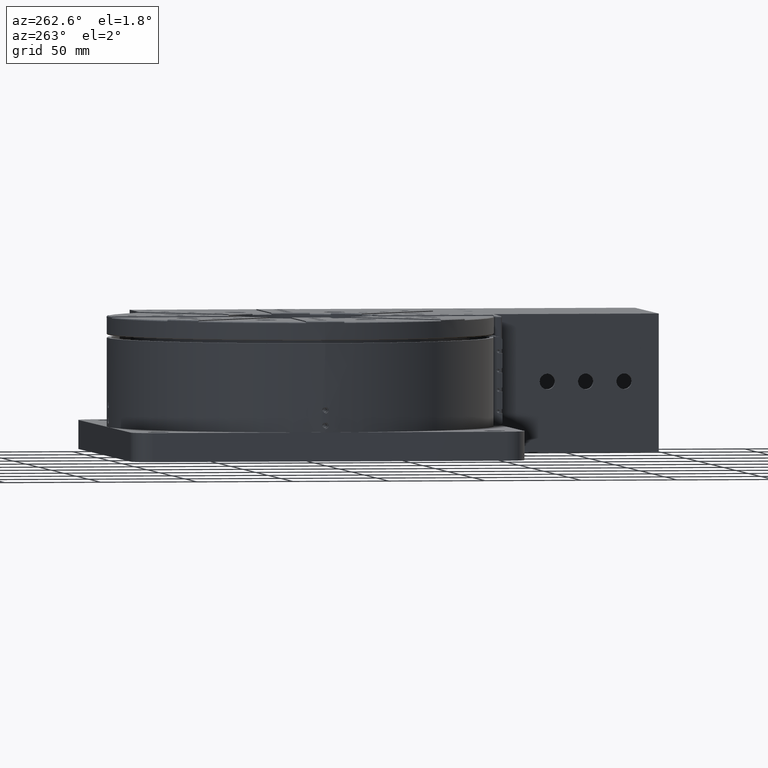
[diagram: clean part render]
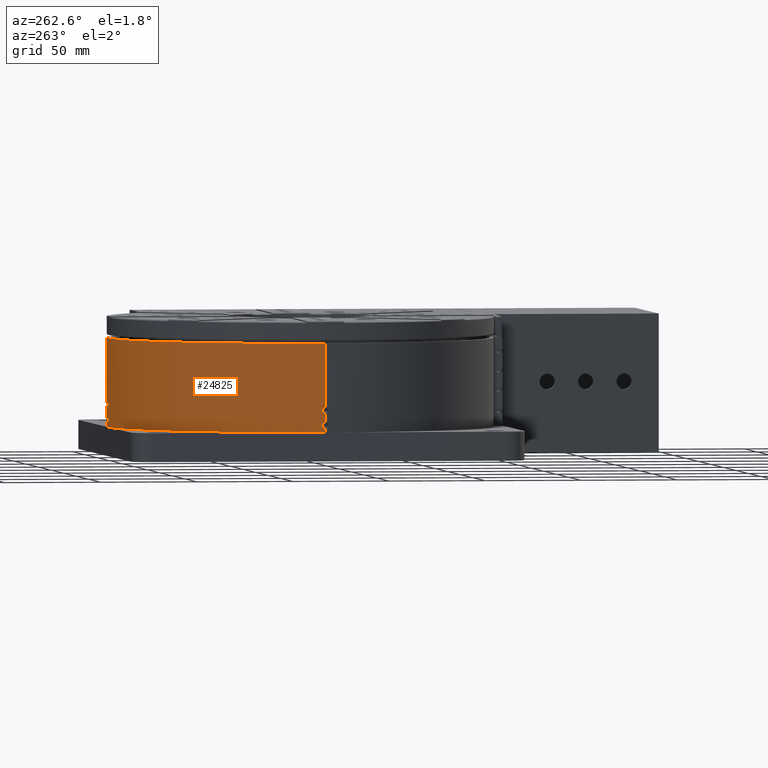
[diagram: same view with one face highlighted and labeled with its STEP entity id]
A machine part, auxiliary view. The second image highlights one B-rep face of the part: STEP entity #24825.
In plain terms, the highlighted cylindrical surface (partial cylindrical patch) has radius 100 mm, axis along (0, 0, -1).
Its self-contained STEP definition (entity closure, byte-faithful):
#1189 = CARTESIAN_POINT ( 'NONE',  ( -54.65769929122529902, 114.5278801913627831, 248.4556803478930078 ) ) ;
#1615 = CARTESIAN_POINT ( 'NONE',  ( -155.5643203279873603, 15.84961524506876884, 237.6834766462955031 ) ) ;
#2482 = B_SPLINE_CURVE_WITH_KNOTS ( 'NONE', 3,
 ( #67013, #51541, #169720, #7962, #83436, #126098, #37049, #6989, #185207, #187109, #97974, #154218, #138718, #22507, #50571, #81498, #66046, #186162, #111558, #109614, #96072, #38930, #125127, #140611, #52509, #65116, #124176, #37991, #67972, #127067, #168750, #156113, #54409, #36084, #158056, #53453, #9894, #23470, #82474, #128016 ),
 .UNSPECIFIED., .F., .F.,
 ( 4, 1, 1, 1, 2, 2, 1, 1, 1, 1, 1, 1, 1, 2, 2, 2, 2, 2, 1, 1, 2, 2, 2, 2, 2, 4 ),
 ( 0.000000000000000000, 0.1249999999961303454, 0.1874999999941908690, 0.2187499999932210615, 0.2343749999927431382, 0.2499999999922652427, 0.3749999999884356949, 0.4374999999865297196, 0.4687499999855854194, 0.4843749999851131305, 0.4921874999848769860, 0.4960937499847506427, 0.4980468749846956866, 0.4990234374846763687, 0.4999999999846570509, 0.5624999999866969747, 0.5937499999877080548, 0.6093749999882133173, 0.6171874999884712221, 0.6210937499885996749, 0.6230468749886644009, 0.6249999999887290159, 0.6874999999906082904, 0.7187499999915478721, 0.7499999999924874539, 1.000000000000000000 ),
 .UNSPECIFIED. ) ;
#2637 = EDGE_CURVE ( 'NONE', #38722, #62733, #173924, .T. ) ;
#2937 = VERTEX_POINT ( 'NONE', #136035 ) ;
#3620 = CARTESIAN_POINT ( 'NONE',  ( -55.23421330176490329, 114.5310772847533940, 237.3796205660365217 ) ) ;
#5496 = CARTESIAN_POINT ( 'NONE',  ( -56.77698695168285070, 114.5244574740784458, 245.8396557086296639 ) ) ;
#6455 = CARTESIAN_POINT ( 'NONE',  ( -57.16859751238263954, 114.5188271301435776, 247.5531305477007322 ) ) ;
#6782 = CARTESIAN_POINT ( 'NONE',  ( -54.12838381066300997, 114.5213024190822040, 239.9352167471500081 ) ) ;
#6989 = CARTESIAN_POINT ( 'NONE',  ( -56.86505467671115355, 114.5232497472620281, 237.9282754262680157 ) ) ;
#7387 = CARTESIAN_POINT ( 'NONE',  ( -56.39973812808321441, 114.5285659856931488, 245.5622391414084973 ) ) ;
#7854 = B_SPLINE_CURVE_WITH_KNOTS ( 'NONE', 3,
 ( #129766, #69704, #188875, #13550 ),
 .UNSPECIFIED., .F., .F.,
 ( 4, 4 ),
 ( 0.000000000000000000, 1.000000000000000000 ),
 .UNSPECIFIED. ) ;
#7962 = CARTESIAN_POINT ( 'NONE',  ( -56.66232664322305368, 114.5258748342820070, 237.7404680869616698 ) ) ;
#8361 = CARTESIAN_POINT ( 'NONE',  ( -57.23389743214099212, 114.5177512602324157, 247.2772414931909566 ) ) ;
#8716 = CARTESIAN_POINT ( 'NONE',  ( -55.56779458258647963, 114.5316349014938453, 240.6500060902898213 ) ) ;
#8853 = B_SPLINE_CURVE_WITH_KNOTS ( 'NONE', 3,
 ( #136999, #165142, #30587, #32480 ),
 .UNSPECIFIED., .F., .F.,
 ( 4, 4 ),
 ( 4.132902548390150352E-06, 0.9999965208820320584 ),
 .UNSPECIFIED. ) ;
#8874 = EDGE_CURVE ( 'NONE', #97605, #120846, #74386, .T. ) ;
#9657 = CARTESIAN_POINT ( 'NONE',  ( -155.5681641378453719, 14.53200402429864369, 248.6500061299653339 ) ) ;
#9894 = CARTESIAN_POINT ( 'NONE',  ( -56.90730623217696404, 114.5226719297569531, 240.0229240385822038 ) ) ;
#10088 = CARTESIAN_POINT ( 'NONE',  ( -55.45684698599180251, 114.5316349021150018, 237.3598735220119806 ) ) ;
#10458 = VERTEX_POINT ( 'NONE', #134733 ) ;
#10605 = CARTESIAN_POINT ( 'NONE',  ( -155.5578316554318690, 15.97141522991129037, 247.9352167471480186 ) ) ;
#11193 = CARTESIAN_POINT ( 'NONE',  ( -155.5681641384674947, 14.53163351315991925, 237.3500001268135122 ) ) ;
#11573 = CARTESIAN_POINT ( 'NONE',  ( -155.5643203279873603, 15.84961524506646846, 245.6834766462979758 ) ) ;
#13059 = DIRECTION ( 'NONE',  ( 1.000000000000000000, 0.000000000000000000, 0.000000000000000000 ) ) ;
#13478 = CARTESIAN_POINT ( 'NONE',  ( -155.5559814654983768, 16.09305430728590736, 247.6741857473749917 ) ) ;
#13550 = CARTESIAN_POINT ( 'NONE',  ( -55.56785869662279964, 114.5316349018150106, 240.6500182094019920 ) ) ;
#13845 = CARTESIAN_POINT ( 'NONE',  ( -53.80279082161928983, 114.5160906387621793, 246.2782241995705306 ) ) ;
#14831 = CARTESIAN_POINT ( 'NONE',  ( -55.23421330176490329, 114.5310772847533940, 245.3796205660364933 ) ) ;
#17980 = CARTESIAN_POINT ( 'NONE',  ( 13.54046305604783917, 86.80886262488719751, 281.5000000000000000 ) ) ;
#18800 = EDGE_LOOP ( 'NONE', ( #111894, #62391, #19498, #38022, #177020, #151964, #81314, #141502, #118738, #134845 ) ) ;
#19104 = CARTESIAN_POINT ( 'NONE',  ( -57.12941417007732525, 114.5194530834625226, 247.6694349193007270 ) ) ;
#19498 = ORIENTED_EDGE ( 'NONE', *, *, #141984, .T. ) ;
#19554 = EDGE_CURVE ( 'NONE', #180047, #156100, #76650, .T. ) ;
#20041 = CARTESIAN_POINT ( 'NONE',  ( -56.82256244359358988, 114.5238432005619842, 245.8843216973933750 ) ) ;
#20393 = CARTESIAN_POINT ( 'NONE',  ( -53.90297064645406522, 114.5177702137962115, 239.2745743383574961 ) ) ;
#21003 = CARTESIAN_POINT ( 'NONE',  ( -57.21569915891316072, 114.5180549505559071, 247.3764914013594591 ) ) ;
#22029 = CARTESIAN_POINT ( 'NONE',  ( -55.79068353724080254, 114.5314494966760037, 248.6302496574835175 ) ) ;
#22106 = VERTEX_POINT ( 'NONE', #25630 ) ;
#22507 = CARTESIAN_POINT ( 'NONE',  ( -57.25148107347646231, 114.5173839427855427, 238.9534712130991920 ) ) ;
#22900 = CARTESIAN_POINT ( 'NONE',  ( -57.25185001370705606, 114.5174537120169020, 246.9965083331596816 ) ) ;
#23470 = CARTESIAN_POINT ( 'NONE',  ( -56.65490750957404487, 114.5259813726347460, 240.3044122653643342 ) ) ;
#23562 = FACE_OUTER_BOUND ( 'NONE', #18800, .T. ) ;
#24143 = EDGE_CURVE ( 'NONE', #2937, #180047, #86153, .T. ) ;
#24196 = CARTESIAN_POINT ( 'NONE',  ( -155.5546123641968563, 16.17809857474733448, 247.3817942002244763 ) ) ;
#24638 = CARTESIAN_POINT ( 'NONE',  ( -55.23421330176490329, 114.5310772847533940, 237.3796205660365217 ) ) ;
#24825 = ADVANCED_FACE ( 'NONE', ( #170760, #54506, #23562 ), #155257, .T. ) ;
#25157 = CARTESIAN_POINT ( 'NONE',  ( -155.5526198751113611, 16.29700821896830476, 246.2782241995719517 ) ) ;
#25198 = CARTESIAN_POINT ( 'NONE',  ( -155.5681641384674947, 14.53163490211490050, 281.5000000000000000 ) ) ;
#25285 = CARTESIAN_POINT ( 'NONE',  ( 13.54046305604783917, 86.80886262488719751, 281.5000000000000000 ) ) ;
#25630 = CARTESIAN_POINT ( 'NONE',  ( -55.90423487919129997, 114.5310701828063884, 237.3806835153100110 ) ) ;
#26506 = VERTEX_POINT ( 'NONE', #53579 ) ;
#27046 = DIRECTION ( 'NONE',  ( 0.000000000000000000, 0.000000000000000000, -1.000000000000000000 ) ) ;
#27403 = ORIENTED_EDGE ( 'NONE', *, *, #94515, .F. ) ;
#27475 = CIRCLE ( 'NONE', #76869, 100.0000000000000000 ) ;
#28813 = CARTESIAN_POINT ( 'NONE',  ( -155.5526198751113611, 16.29700821896960505, 238.2782241995699906 ) ) ;
#29336 = CARTESIAN_POINT ( 'NONE',  ( -54.23875289988878734, 114.5228953717271594, 248.0841489757619911 ) ) ;
#30587 = CARTESIAN_POINT ( 'NONE',  ( -55.79221216942850248, 114.5314466604589967, 245.3704558752244793 ) ) ;
#30648 = CARTESIAN_POINT ( 'NONE',  ( -55.56816552742220239, 114.5316349021150018, 245.3500001268135122 ) ) ;
#32480 = CARTESIAN_POINT ( 'NONE',  ( -55.90423487919120049, 114.5310701828063884, 245.3806835153094710 ) ) ;
#34904 = CARTESIAN_POINT ( 'NONE',  ( -53.97351746708604026, 114.5189229612268207, 239.5809033046435275 ) ) ;
#35595 = CARTESIAN_POINT ( 'NONE',  ( -55.90218999769640362, 114.5310770341855999, 248.6203539682074677 ) ) ;
#36084 = CARTESIAN_POINT ( 'NONE',  ( -57.01141424451510176, 114.5212274022377130, 239.8834809172803944 ) ) ;
#36470 = CARTESIAN_POINT ( 'NONE',  ( -55.79221216942860195, 114.5314466604589967, 237.3704558752245077 ) ) ;
#37049 = CARTESIAN_POINT ( 'NONE',  ( -56.85215393873199474, 114.5234331162348553, 237.9145781887116868 ) ) ;
#37439 = CARTESIAN_POINT ( 'NONE',  ( -56.85215393873192369, 114.5234331162349548, 245.9145781887116868 ) ) ;
#37830 = EDGE_CURVE ( 'NONE', #51463, #10458, #47095, .T. ) ;
#37975 = CARTESIAN_POINT ( 'NONE',  ( -55.56785869661619870, 114.5316349018150106, 248.6500182094015088 ) ) ;
#37991 = CARTESIAN_POINT ( 'NONE',  ( -57.17650649218582970, 114.5186999390582230, 239.5285736976576345 ) ) ;
#38022 = ORIENTED_EDGE ( 'NONE', *, *, #162517, .T. ) ;
#38079 = DIRECTION ( 'NONE',  ( 0.000000000000000000, 0.000000000000000000, -1.000000000000000000 ) ) ;
#38229 = ORIENTED_EDGE ( 'NONE', *, *, #136155, .F. ) ;
#38710 = CARTESIAN_POINT ( 'NONE',  ( -53.80279082162427784, 114.5160906387624067, 238.2782241995690242 ) ) ;
#38722 = VERTEX_POINT ( 'NONE', #112271 ) ;
#38930 = CARTESIAN_POINT ( 'NONE',  ( -57.24061106553619993, 114.5176410075372075, 239.2188951327281359 ) ) ;
#39142 = VERTEX_POINT ( 'NONE', #150913 ) ;
#40191 = DIRECTION ( 'NONE',  ( 0.000000000000000000, 0.000000000000000000, 1.000000000000000000 ) ) ;
#40975 = ORIENTED_EDGE ( 'NONE', *, *, #183092, .F. ) ;
#42524 = CARTESIAN_POINT ( 'NONE',  ( -155.5681641381674751, 14.53193968260034019, 248.6500181507084903 ) ) ;
#43307 = CARTESIAN_POINT ( 'NONE',  ( -155.5681615750193600, 15.04568017889332054, 240.6030139343880023 ) ) ;
#43920 = DIRECTION ( 'NONE',  ( 1.000000000000000000, 0.000000000000000000, 0.000000000000000000 ) ) ;
#44336 = EDGE_CURVE ( 'NONE', #130258, #26506, #7854, .T. ) ;
#45211 = CARTESIAN_POINT ( 'NONE',  ( -155.5644094277123486, 15.44209974935077057, 240.4556803478939742 ) ) ;
#45749 = CARTESIAN_POINT ( 'NONE',  ( -54.00674473329293335, 114.5194522291491666, 247.6741857473764981 ) ) ;
#47095 = LINE ( 'NONE', #78952, #78093 ) ;
#47371 = B_SPLINE_CURVE_WITH_KNOTS ( 'NONE', 3,
 ( #177917, #179829, #134284, #131441, #43307, #45211, #87843, #190538, #104251, #163394, #89755, #57861, #28813, #1615, #149776 ),
 .UNSPECIFIED., .F., .F.,
 ( 4, 3, 2, 2, 2, 2, 4 ),
 ( 0.000000000000000000, 3.159218187860502315E-05, 0.2500236941364089582, 0.3750197451136740856, 0.4375177706023066770, 0.5000157960909393795, 1.000000000000000000 ),
 .UNSPECIFIED. ) ;
#47907 = ORIENTED_EDGE ( 'NONE', *, *, #2637, .F. ) ;
#48519 = AXIS2_PLACEMENT_3D ( 'NONE', #67106, #38079, #172682 ) ;
#48560 = CARTESIAN_POINT ( 'NONE',  ( -155.5681641381674751, 14.53193968259703972, 240.6500181507084903 ) ) ;
#50027 = CARTESIAN_POINT ( 'NONE',  ( -57.24061107132312287, 114.5176410073069917, 247.2188950802994611 ) ) ;
#50106 = CARTESIAN_POINT ( 'NONE',  ( -55.67917645380170200, 114.5316354525914022, 248.6401453467595104 ) ) ;
#50571 = CARTESIAN_POINT ( 'NONE',  ( -57.25177063999380778, 114.5174189502750011, 238.9765904424502594 ) ) ;
#50974 = CARTESIAN_POINT ( 'NONE',  ( -57.14401013193944578, 114.5188181253548692, 246.3192887192964804 ) ) ;
#51463 = VERTEX_POINT ( 'NONE', #25198 ) ;
#51541 = CARTESIAN_POINT ( 'NONE',  ( -56.11763838720310105, 114.5303529920076642, 237.4440569964743020 ) ) ;
#51942 = CARTESIAN_POINT ( 'NONE',  ( -57.00457714145769472, 114.5212059068061876, 246.0837766806438083 ) ) ;
#52509 = CARTESIAN_POINT ( 'NONE',  ( -57.20826272028985215, 114.5181792896281365, 239.4115202484825602 ) ) ;
#52898 = CARTESIAN_POINT ( 'NONE',  ( -57.08487860502275169, 114.5201495985907627, 247.7618811464480189 ) ) ;
#53453 = CARTESIAN_POINT ( 'NONE',  ( -56.93329191172033177, 114.5223213712877026, 239.9913985337316262 ) ) ;
#53579 = CARTESIAN_POINT ( 'NONE',  ( -55.56785869662279964, 114.5316349018150106, 240.6500182094019920 ) ) ;
#54409 = CARTESIAN_POINT ( 'NONE',  ( -57.08487870312238499, 114.5201495970472649, 239.7618809556859958 ) ) ;
#54506 = FACE_BOUND ( 'NONE', #88330, .T. ) ;
#56635 = VERTEX_POINT ( 'NONE', #140995 ) ;
#57048 = CARTESIAN_POINT ( 'NONE',  ( -155.5681615750193600, 15.04568017889417142, 248.6030139343865244 ) ) ;
#57521 = DIRECTION ( 'NONE',  ( 0.000000000000000000, 0.000000000000000000, 1.000000000000000000 ) ) ;
#57705 = EDGE_CURVE ( 'NONE', #80887, #39142, #158568, .T. ) ;
#57861 = CARTESIAN_POINT ( 'NONE',  ( -155.5542994501453791, 16.19682839412598341, 239.2745743383579793 ) ) ;
#59174 = EDGE_CURVE ( 'NONE', #71636, #97605, #164916, .T. ) ;
#60281 = CARTESIAN_POINT ( 'NONE',  ( -54.25018379552079040, 114.5277910916377806, 245.6834766462965263 ) ) ;
#61644 = DIRECTION ( 'NONE',  ( 0.000000000000000000, 0.000000000000000000, -1.000000000000000000 ) ) ;
#62298 = EDGE_LOOP ( 'NONE', ( #27403, #181436, #177082, #124768, #74630 ) ) ;
#62391 = ORIENTED_EDGE ( 'NONE', *, *, #177782, .F. ) ;
#62733 = VERTEX_POINT ( 'NONE', #154646 ) ;
#62944 = VERTEX_POINT ( 'NONE', #17980 ) ;
#63047 = AXIS2_PLACEMENT_3D ( 'NONE', #172889, #40191, #13059 ) ;
#64561 = CARTESIAN_POINT ( 'NONE',  ( -57.25296741639551357, 114.5174494780806782, 247.0724578774717770 ) ) ;
#65116 = CARTESIAN_POINT ( 'NONE',  ( -57.19438176397704865, 114.5184084544039393, 239.4665746209275596 ) ) ;
#65397 = B_SPLINE_CURVE_WITH_KNOTS ( 'NONE', 3,
 ( #42524, #9657, #160701, #187843, #57048, #83193, #116089, #10605, #13478, #98691, #24196, #127768, #25157, #11573, #190708 ),
 .UNSPECIFIED., .F., .F.,
 ( 4, 3, 2, 2, 2, 2, 4 ),
 ( 0.000000000000000000, 3.159218135659379659E-05, 0.2500236941360174381, 0.3750197451133478466, 0.4375177706020130786, 0.5000157960906782550, 1.000000000000000000 ),
 .UNSPECIFIED. ) ;
#65492 = CARTESIAN_POINT ( 'NONE',  ( -55.90423487919129997, 114.5310701828063884, 237.3806835153100110 ) ) ;
#65829 = CARTESIAN_POINT ( 'NONE',  ( -55.56766521978509843, 114.5316349008484167, 240.6499942559034935 ) ) ;
#66046 = CARTESIAN_POINT ( 'NONE',  ( -57.25184658556687367, 114.5174476407762683, 238.9931827979821151 ) ) ;
#66439 = CARTESIAN_POINT ( 'NONE',  ( -56.86505467671105407, 114.5232497472621276, 245.9282754262679020 ) ) ;
#67013 = CARTESIAN_POINT ( 'NONE',  ( -55.90423487919129997, 114.5310701828063884, 237.3806835153100110 ) ) ;
#67106 = CARTESIAN_POINT ( 'NONE',  ( -55.56816413846759417, 14.53163490211490050, 281.5000000000000000 ) ) ;
#67406 = CARTESIAN_POINT ( 'NONE',  ( -57.20826272670088031, 114.5181792894420596, 247.4115202209070219 ) ) ;
#67747 = CARTESIAN_POINT ( 'NONE',  ( -54.23875289988498594, 114.5228953717272020, 240.0841489757625027 ) ) ;
#67972 = CARTESIAN_POINT ( 'NONE',  ( -57.17180358572546339, 114.5187756501452014, 239.5432815192394855 ) ) ;
#69704 = CARTESIAN_POINT ( 'NONE',  ( -55.79068353724089491, 114.5314494966760037, 240.6302496574834890 ) ) ;
#71636 = VERTEX_POINT ( 'NONE', #121307 ) ;
#72970 = CARTESIAN_POINT ( 'NONE',  ( -55.56816413846759417, 14.53163490211490050, 235.5000000000000000 ) ) ;
#74386 = LINE ( 'NONE', #116062, #188921 ) ;
#74630 = ORIENTED_EDGE ( 'NONE', *, *, #189369, .F. ) ;
#76650 = LINE ( 'NONE', #108569, #113797 ) ;
#76869 = AXIS2_PLACEMENT_3D ( 'NONE', #72970, #57521, #43920 ) ;
#78085 = CARTESIAN_POINT ( 'NONE',  ( -57.25026458058464129, 114.5173316476696925, 246.9076156412883449 ) ) ;
#78093 = VECTOR ( 'NONE', #61644, 1000.000000000000000 ) ;
#78952 = CARTESIAN_POINT ( 'NONE',  ( -155.5681641384674947, 14.53163490211490050, 281.5000000000000000 ) ) ;
#79037 = CARTESIAN_POINT ( 'NONE',  ( -57.25184658556685235, 114.5174476407761404, 246.9931827979820582 ) ) ;
#79990 = CARTESIAN_POINT ( 'NONE',  ( -57.19438176879778979, 114.5184084542713521, 247.4665746028755962 ) ) ;
#80887 = VERTEX_POINT ( 'NONE', #37975 ) ;
#81282 = CARTESIAN_POINT ( 'NONE',  ( -54.00674473329043934, 114.5194522291492092, 239.6741857473770096 ) ) ;
#81314 = ORIENTED_EDGE ( 'NONE', *, *, #82427, .F. ) ;
#81498 = CARTESIAN_POINT ( 'NONE',  ( -57.25183575255373825, 114.5174386954318493, 238.9881979132574656 ) ) ;
#81894 = CARTESIAN_POINT ( 'NONE',  ( -57.25184801907889209, 114.5174595398125348, 246.9996227001956868 ) ) ;
#82240 = CARTESIAN_POINT ( 'NONE',  ( -55.56772990118578548, 114.5316349011711310, 240.6500001730966858 ) ) ;
#82427 = EDGE_CURVE ( 'NONE', #120846, #2937, #47371, .T. ) ;
#82474 = CARTESIAN_POINT ( 'NONE',  ( -56.32922451793060503, 114.5293105992661253, 240.4931297272368624 ) ) ;
#83193 = CARTESIAN_POINT ( 'NONE',  ( -155.5644094277123486, 15.44209974935207086, 248.4556803478914730 ) ) ;
#83436 = CARTESIAN_POINT ( 'NONE',  ( -56.77698695168293597, 114.5244574740783179, 237.8396557086298060 ) ) ;
#83643 = CARTESIAN_POINT ( 'NONE',  ( -55.34552983351660060, 114.5314490293155956, 237.3697470440245070 ) ) ;
#84729 = CARTESIAN_POINT ( 'NONE',  ( -155.5676065211060290, 14.86558573881830014, 237.3796205660365217 ) ) ;
#85999 = CARTESIAN_POINT ( 'NONE',  ( -155.5681641384674947, 14.53163351315989793, 245.3500001268135122 ) ) ;
#86153 = B_SPLINE_CURVE_WITH_KNOTS ( 'NONE', 3,
 ( #84729, #143820, #157419, #11193 ),
 .UNSPECIFIED., .F., .F.,
 ( 4, 4 ),
 ( 0.000000000000000000, 1.000000000000000000 ),
 .UNSPECIFIED. ) ;
#87843 = CARTESIAN_POINT ( 'NONE',  ( -155.5594246080768528, 15.86104614068721474, 240.0841489757634974 ) ) ;
#88322 = CARTESIAN_POINT ( 'NONE',  ( -55.90218999769670205, 114.5310770341855999, 240.6203539682074961 ) ) ;
#88330 = EDGE_LOOP ( 'NONE', ( #105224, #184689, #47907, #38229, #40975 ) ) ;
#88375 = CARTESIAN_POINT ( 'NONE',  ( -53.97351746708824294, 114.5189229612267923, 247.5809033046429875 ) ) ;
#88950 = CARTESIAN_POINT ( 'NONE',  ( -55.56816552742220239, 114.5316349021150018, 237.3500001268135122 ) ) ;
#89342 = CARTESIAN_POINT ( 'NONE',  ( -55.56779458258205295, 114.5316349014937884, 248.6500060902894234 ) ) ;
#89755 = CARTESIAN_POINT ( 'NONE',  ( -155.5546123641968563, 16.17809857474668433, 239.3817942002265227 ) ) ;
#92661 = CARTESIAN_POINT ( 'NONE',  ( -56.65490750957793153, 114.5259813729118150, 248.3044122653638510 ) ) ;
#93589 = CARTESIAN_POINT ( 'NONE',  ( -55.68018884842680194, 114.5316349005589984, 237.3602280010190100 ) ) ;
#93597 = CARTESIAN_POINT ( 'NONE',  ( -55.90423487919120049, 114.5310701828063884, 245.3806835153094710 ) ) ;
#94515 = EDGE_CURVE ( 'NONE', #26506, #114359, #164924, .T. ) ;
#94556 = CARTESIAN_POINT ( 'NONE',  ( -56.66232664322289736, 114.5258748342820923, 245.7404680869613287 ) ) ;
#94758 = EDGE_CURVE ( 'NONE', #10458, #71636, #65397, .T. ) ;
#95322 = CARTESIAN_POINT ( 'NONE',  ( -55.56816552742220239, 114.5316349021150018, 237.3500001268135122 ) ) ;
#96072 = CARTESIAN_POINT ( 'NONE',  ( -57.25296741450475224, 114.5174494782303043, 239.0724579322652517 ) ) ;
#96447 = CARTESIAN_POINT ( 'NONE',  ( -57.24528220080989627, 114.5172962454341672, 246.8174363479292595 ) ) ;
#97605 = VERTEX_POINT ( 'NONE', #100180 ) ;
#97974 = CARTESIAN_POINT ( 'NONE',  ( -57.22512022199148163, 114.5174886614498462, 238.6432075838668254 ) ) ;
#98691 = CARTESIAN_POINT ( 'NONE',  ( -155.5554521975763578, 16.12628157349115199, 247.5809033046419643 ) ) ;
#99893 = B_SPLINE_CURVE_WITH_KNOTS ( 'NONE', 3,
 ( #24638, #83643, #10088, #95322 ),
 .UNSPECIFIED., .F., .F.,
 ( 4, 4 ),
 ( 0.000000000000000000, 1.000000000000000000 ),
 .UNSPECIFIED. ) ;
#100180 = CARTESIAN_POINT ( 'NONE',  ( -155.5681641384674947, 14.53163351315989793, 245.3500001268135122 ) ) ;
#101947 = CARTESIAN_POINT ( 'NONE',  ( -55.56772990118357569, 114.5316349011710884, 248.6500001730964584 ) ) ;
#104251 = CARTESIAN_POINT ( 'NONE',  ( -155.5559814654983768, 16.09305430728485575, 239.6741857473774644 ) ) ;
#105224 = ORIENTED_EDGE ( 'NONE', *, *, #57705, .F. ) ;
#106077 = CARTESIAN_POINT ( 'NONE',  ( -55.23421330176490329, 114.5310772847533940, 245.3796205660364933 ) ) ;
#108569 = CARTESIAN_POINT ( 'NONE',  ( -155.5681641384674947, 14.53163490211490050, 281.5000000000000000 ) ) ;
#109060 = CARTESIAN_POINT ( 'NONE',  ( -57.25148107347644810, 114.5173839427854290, 246.9534712130992773 ) ) ;
#109614 = CARTESIAN_POINT ( 'NONE',  ( -57.25183059651542550, 114.5174858726239222, 239.0135708375188131 ) ) ;
#110015 = CARTESIAN_POINT ( 'NONE',  ( -56.90730623217633166, 114.5226719297223639, 248.0229240385825449 ) ) ;
#110242 = B_SPLINE_CURVE_WITH_KNOTS ( 'NONE', 3,
 ( #106077, #147811, #163317, #30648 ),
 .UNSPECIFIED., .F., .F.,
 ( 4, 4 ),
 ( 0.000000000000000000, 1.000000000000000000 ),
 .UNSPECIFIED. ) ;
#110971 = CARTESIAN_POINT ( 'NONE',  ( -57.22512022199146031, 114.5174886614498320, 246.6432075838669675 ) ) ;
#111558 = CARTESIAN_POINT ( 'NONE',  ( -57.25184801907963816, 114.5174595398114974, 238.9996226996137523 ) ) ;
#111894 = ORIENTED_EDGE ( 'NONE', *, *, #37830, .F. ) ;
#111926 = CARTESIAN_POINT ( 'NONE',  ( -56.98580618801139508, 114.5215930888484621, 247.9211636896030200 ) ) ;
#112271 = CARTESIAN_POINT ( 'NONE',  ( -55.90423487919120049, 114.5310701828063884, 245.3806835153094710 ) ) ;
#112273 = CARTESIAN_POINT ( 'NONE',  ( -53.92170046583195386, 114.5180831278472198, 239.3817942002254995 ) ) ;
#113227 = CARTESIAN_POINT ( 'NONE',  ( -55.56785869662279964, 114.5316349018150106, 240.6500182094019920 ) ) ;
#113797 = VECTOR ( 'NONE', #168641, 1000.000000000000000 ) ;
#114359 = VERTEX_POINT ( 'NONE', #3620 ) ;
#116062 = CARTESIAN_POINT ( 'NONE',  ( -155.5681641384674947, 14.53163490211490050, 281.5000000000000000 ) ) ;
#116089 = CARTESIAN_POINT ( 'NONE',  ( -155.5594246080768528, 15.86104614068861451, 248.0841489757604847 ) ) ;
#118672 = VERTEX_POINT ( 'NONE', #170003 ) ;
#118738 = ORIENTED_EDGE ( 'NONE', *, *, #59174, .F. ) ;
#120279 = CARTESIAN_POINT ( 'NONE',  ( -54.12838381066651294, 114.5213024190821756, 247.9352167471495250 ) ) ;
#120846 = VERTEX_POINT ( 'NONE', #48560 ) ;
#121307 = CARTESIAN_POINT ( 'NONE',  ( -155.5676065211060290, 14.86558573881572087, 245.3796205660364933 ) ) ;
#124176 = CARTESIAN_POINT ( 'NONE',  ( -57.18675823612332465, 114.5185336856457496, 239.4947287014632309 ) ) ;
#124572 = CARTESIAN_POINT ( 'NONE',  ( -57.16640512923792983, 114.5188622214722756, 247.5597199762753462 ) ) ;
#124768 = ORIENTED_EDGE ( 'NONE', *, *, #142336, .F. ) ;
#124908 = CARTESIAN_POINT ( 'NONE',  ( -54.25018379552569314, 114.5277910916378090, 237.6834766462945083 ) ) ;
#125127 = CARTESIAN_POINT ( 'NONE',  ( -57.23389742507787759, 114.5177512604773966, 239.2772415401833257 ) ) ;
#125521 = CARTESIAN_POINT ( 'NONE',  ( -55.56816552742220239, 114.5316349021150018, 237.3500001268135122 ) ) ;
#126098 = CARTESIAN_POINT ( 'NONE',  ( -56.82256244359366804, 114.5238432005618847, 237.8843216973934602 ) ) ;
#126489 = CARTESIAN_POINT ( 'NONE',  ( -57.18675823991468121, 114.5185336855449236, 247.4947286884681432 ) ) ;
#126564 = CARTESIAN_POINT ( 'NONE',  ( -55.56785869661619870, 114.5316349018150106, 248.6500182094015088 ) ) ;
#126843 = CARTESIAN_POINT ( 'NONE',  ( -55.23421330176490329, 114.5310772847533940, 237.3796205660365217 ) ) ;
#127067 = CARTESIAN_POINT ( 'NONE',  ( -57.16859751174495585, 114.5188271301597496, 239.5531305496262746 ) ) ;
#127768 = CARTESIAN_POINT ( 'NONE',  ( -155.5542994501453791, 16.19682839412653053, 247.2745743383560182 ) ) ;
#128016 = CARTESIAN_POINT ( 'NONE',  ( -55.90218999769670205, 114.5310770341855999, 240.6203539682074961 ) ) ;
#128391 = EDGE_CURVE ( 'NONE', #62733, #80887, #180922, .T. ) ;
#129766 = CARTESIAN_POINT ( 'NONE',  ( -55.90218999769670205, 114.5310770341855999, 240.6203539682074961 ) ) ;
#130258 = VERTEX_POINT ( 'NONE', #88322 ) ;
#131441 = CARTESIAN_POINT ( 'NONE',  ( -155.5681641371978401, 14.53213382079663774, 240.6499942559034650 ) ) ;
#133877 = CARTESIAN_POINT ( 'NONE',  ( -55.05411886168462132, 114.5316323386697945, 248.6030139343875192 ) ) ;
#134284 = CARTESIAN_POINT ( 'NONE',  ( -155.5681641375216202, 14.53206892254656957, 240.6500001929344705 ) ) ;
#134733 = CARTESIAN_POINT ( 'NONE',  ( -155.5681641381674751, 14.53193968260034019, 248.6500181507084903 ) ) ;
#134845 = ORIENTED_EDGE ( 'NONE', *, *, #94758, .F. ) ;
#136035 = CARTESIAN_POINT ( 'NONE',  ( -155.5676065211060290, 14.86558573881830014, 237.3796205660365217 ) ) ;
#136155 = EDGE_CURVE ( 'NONE', #56635, #38722, #8853, .T. ) ;
#136999 = CARTESIAN_POINT ( 'NONE',  ( -55.56816552742220239, 114.5316349021150018, 245.3500001268135122 ) ) ;
#138718 = CARTESIAN_POINT ( 'NONE',  ( -57.25026458058464129, 114.5173316476697352, 238.9076156412880607 ) ) ;
#139107 = CARTESIAN_POINT ( 'NONE',  ( -57.17180358695848241, 114.5187756501137102, 247.5432815154173340 ) ) ;
#139454 = B_SPLINE_CURVE_WITH_KNOTS ( 'NONE', 3,
 ( #125521, #93589, #36470, #65492 ),
 .UNSPECIFIED., .F., .F.,
 ( 4, 4 ),
 ( 4.132902609817310029E-06, 0.9999965208822040319 ),
 .UNSPECIFIED. ) ;
#140611 = CARTESIAN_POINT ( 'NONE',  ( -57.21569915206327295, 114.5180549507641103, 239.3764914344958470 ) ) ;
#140995 = CARTESIAN_POINT ( 'NONE',  ( -55.56816552742220239, 114.5316349021150018, 245.3500001268135122 ) ) ;
#141007 = CARTESIAN_POINT ( 'NONE',  ( -57.25183059656195894, 114.5174858725535501, 247.0135708002766819 ) ) ;
#141502 = ORIENTED_EDGE ( 'NONE', *, *, #8874, .F. ) ;
#141984 = EDGE_CURVE ( 'NONE', #62944, #118672, #169609, .T. ) ;
#142336 = EDGE_CURVE ( 'NONE', #159299, #22106, #139454, .T. ) ;
#142432 = DIRECTION ( 'NONE',  ( 0.000000000000000000, 0.000000000000000000, -1.000000000000000000 ) ) ;
#143820 = CARTESIAN_POINT ( 'NONE',  ( -155.5679782656685006, 14.75426920706625999, 237.3697470440245070 ) ) ;
#144689 = VECTOR ( 'NONE', #142432, 1000.000000000000000 ) ;
#147468 = CARTESIAN_POINT ( 'NONE',  ( -53.90297064645466207, 114.5177702137961688, 247.2745743383570129 ) ) ;
#147811 = CARTESIAN_POINT ( 'NONE',  ( -55.34552983351660060, 114.5314490293155956, 245.3697470440245070 ) ) ;
#148425 = CARTESIAN_POINT ( 'NONE',  ( -53.92170046583316179, 114.5180831278471771, 247.3817942002255279 ) ) ;
#149776 = CARTESIAN_POINT ( 'NONE',  ( -155.5676065211060290, 14.86558573881830014, 237.3796205660365217 ) ) ;
#150913 = CARTESIAN_POINT ( 'NONE',  ( -55.23421330176490329, 114.5310772847533940, 245.3796205660364933 ) ) ;
#151756 = CARTESIAN_POINT ( 'NONE',  ( -56.32922451793214691, 114.5293105995432228, 248.4931297272366351 ) ) ;
#151964 = ORIENTED_EDGE ( 'NONE', *, *, #24143, .F. ) ;
#152693 = CARTESIAN_POINT ( 'NONE',  ( -56.11763838720310815, 114.5303529920077494, 245.4440569964681345 ) ) ;
#154218 = CARTESIAN_POINT ( 'NONE',  ( -57.24528220080993890, 114.5172962454342525, 238.8174363479290889 ) ) ;
#154646 = CARTESIAN_POINT ( 'NONE',  ( -55.90218999769640362, 114.5310770341855999, 248.6203539682074677 ) ) ;
#155257 = CYLINDRICAL_SURFACE ( 'NONE', #48519, 100.0000000000000000 ) ;
#155549 = CARTESIAN_POINT ( 'NONE',  ( -57.25183575255375246, 114.5174386954317924, 246.9881979132576362 ) ) ;
#156100 = VERTEX_POINT ( 'NONE', #170117 ) ;
#156113 = CARTESIAN_POINT ( 'NONE',  ( -57.12941421677989240, 114.5194530826525323, 239.6694347807782890 ) ) ;
#157419 = CARTESIAN_POINT ( 'NONE',  ( -155.5681641384674947, 14.64295205459069926, 237.3598735220119806 ) ) ;
#158056 = CARTESIAN_POINT ( 'NONE',  ( -56.98580630167928263, 114.5215930872682719, 239.9211635291473783 ) ) ;
#158568 = B_SPLINE_CURVE_WITH_KNOTS ( 'NONE', 3,
 ( #162967, #89342, #101947, #162015, #133877, #1189, #29336, #120279, #45749, #88375, #148425, #147468, #13845, #60281, #14831 ),
 .UNSPECIFIED., .F., .F.,
 ( 4, 3, 2, 2, 2, 2, 4 ),
 ( 0.000000000000000000, 3.148662280514135184E-05, 0.2500236149671038466, 0.3750196791392532147, 0.4375177112253278988, 0.5000157433114025274, 1.000000000000000000 ),
 .UNSPECIFIED. ) ;
#159299 = VERTEX_POINT ( 'NONE', #88950 ) ;
#160701 = CARTESIAN_POINT ( 'NONE',  ( -155.5681641375216202, 14.53206892254764071, 248.6500001929344137 ) ) ;
#162015 = CARTESIAN_POINT ( 'NONE',  ( -55.56766521978509843, 114.5316349008483883, 248.6499942559034935 ) ) ;
#162517 = EDGE_CURVE ( 'NONE', #118672, #156100, #27475, .T. ) ;
#162967 = CARTESIAN_POINT ( 'NONE',  ( -55.56785869661619870, 114.5316349018150106, 248.6500182094015088 ) ) ;
#163317 = CARTESIAN_POINT ( 'NONE',  ( -55.45684698599180251, 114.5316349021150018, 245.3598735220124922 ) ) ;
#163394 = CARTESIAN_POINT ( 'NONE',  ( -155.5554521975763578, 16.12628157349020341, 239.5809033046444938 ) ) ;
#164916 = B_SPLINE_CURVE_WITH_KNOTS ( 'NONE', 3,
 ( #174178, #189650, #188715, #85999 ),
 .UNSPECIFIED., .F., .F.,
 ( 4, 4 ),
 ( 0.000000000000000000, 1.000000000000000000 ),
 .UNSPECIFIED. ) ;
#164924 = B_SPLINE_CURVE_WITH_KNOTS ( 'NONE', 3,
 ( #113227, #8716, #82240, #65829, #171393, #184985, #67747, #6782, #81282, #34904, #112273, #20393, #38710, #124908, #126843 ),
 .UNSPECIFIED., .F., .F.,
 ( 4, 3, 2, 2, 2, 2, 4 ),
 ( 0.000000000000000000, 3.148662388353888207E-05, 0.2500236149679126441, 0.3750196791399272311, 0.4375177112259344692, 0.5000157433119417627, 1.000000000000000000 ),
 .UNSPECIFIED. ) ;
#165142 = CARTESIAN_POINT ( 'NONE',  ( -55.68018884842680194, 114.5316349005589984, 245.3602280010190100 ) ) ;
#168641 = DIRECTION ( 'NONE',  ( 0.000000000000000000, 0.000000000000000000, -1.000000000000000000 ) ) ;
#168750 = CARTESIAN_POINT ( 'NONE',  ( -57.16640512777853189, 114.5188622214976135, 239.5597199806041147 ) ) ;
#169155 = CARTESIAN_POINT ( 'NONE',  ( -55.90218999769640362, 114.5310770341855999, 248.6203539682074677 ) ) ;
#169588 = CARTESIAN_POINT ( 'NONE',  ( -155.5681641384674947, 14.53163351315991925, 237.3500001268135122 ) ) ;
#169609 = LINE ( 'NONE', #25285, #144689 ) ;
#169720 = CARTESIAN_POINT ( 'NONE',  ( -56.39973812808347731, 114.5285659856930494, 237.5622391414060814 ) ) ;
#170003 = CARTESIAN_POINT ( 'NONE',  ( 13.54046305604783917, 86.80886262488719751, 235.5000000000000000 ) ) ;
#170117 = CARTESIAN_POINT ( 'NONE',  ( -155.5681641384674947, 14.53163490211490050, 235.5000000000000000 ) ) ;
#170760 = FACE_BOUND ( 'NONE', #62298, .T. ) ;
#171051 = CARTESIAN_POINT ( 'NONE',  ( -56.93329183228961199, 114.5223213723270135, 247.9913986315331726 ) ) ;
#171393 = CARTESIAN_POINT ( 'NONE',  ( -55.05411886168211311, 114.5316323386698230, 240.6030139343875192 ) ) ;
#172682 = DIRECTION ( 'NONE',  ( -1.000000000000000000, 0.000000000000000000, 0.000000000000000000 ) ) ;
#172889 = CARTESIAN_POINT ( 'NONE',  ( -55.56816413846759417, 14.53163490211490050, 281.5000000000000000 ) ) ;
#173924 = B_SPLINE_CURVE_WITH_KNOTS ( 'NONE', 3,
 ( #93597, #152693, #7387, #94556, #5496, #20041, #37439, #66439, #51942, #50974, #110971, #96447, #78085, #109060, #182752, #155549, #79037, #22900, #81894, #141007, #64561, #50027, #8361, #21003, #67406, #79990, #126489, #185590, #139107, #6455, #124572, #19104, #52898, #183682, #111926, #171051, #110015, #92661, #151756, #169155 ),
 .UNSPECIFIED., .F., .F.,
 ( 4, 1, 1, 1, 2, 2, 1, 1, 1, 1, 1, 1, 1, 2, 2, 2, 2, 2, 1, 1, 2, 2, 2, 2, 2, 4 ),
 ( 0.000000000000000000, 0.1250000000016362467, 0.1875000000024543423, 0.2187500000028675673, 0.2343750000030760672, 0.2500000000032845948, 0.3750000000050223159, 0.4375000000058831828, 0.4687500000063219985, 0.4843750000065498718, 0.4921875000066721073, 0.4960937500067414407, 0.4980468750067679196, 0.4990234375067730266, 0.5000000000067781336, 0.5625000000059671157, 0.5937500000055702110, 0.6093750000053782534, 0.6171875000052766680, 0.6210937500052258198, 0.6230468750052000626, 0.6250000000051741944, 0.6875000000043073323, 0.7187500000038737902, 0.7500000000034403591, 1.000000000000000000 ),
 .UNSPECIFIED. ) ;
#174178 = CARTESIAN_POINT ( 'NONE',  ( -155.5676065211060290, 14.86558573881572087, 245.3796205660364933 ) ) ;
#177020 = ORIENTED_EDGE ( 'NONE', *, *, #19554, .F. ) ;
#177082 = ORIENTED_EDGE ( 'NONE', *, *, #191568, .F. ) ;
#177782 = EDGE_CURVE ( 'NONE', #62944, #51463, #186788, .T. ) ;
#177917 = CARTESIAN_POINT ( 'NONE',  ( -155.5681641381674751, 14.53193968259703972, 240.6500181507084903 ) ) ;
#179829 = CARTESIAN_POINT ( 'NONE',  ( -155.5681641378453719, 14.53200402429649785, 240.6500061299654760 ) ) ;
#180047 = VERTEX_POINT ( 'NONE', #169588 ) ;
#180922 = B_SPLINE_CURVE_WITH_KNOTS ( 'NONE', 3,
 ( #35595, #22029, #50106, #126564 ),
 .UNSPECIFIED., .F., .F.,
 ( 4, 4 ),
 ( 0.000000000000000000, 1.000000000000000000 ),
 .UNSPECIFIED. ) ;
#181436 = ORIENTED_EDGE ( 'NONE', *, *, #44336, .F. ) ;
#182752 = CARTESIAN_POINT ( 'NONE',  ( -57.25177063999382199, 114.5174189502749300, 246.9765904424501741 ) ) ;
#183092 = EDGE_CURVE ( 'NONE', #39142, #56635, #110242, .T. ) ;
#183682 = CARTESIAN_POINT ( 'NONE',  ( -57.01141412759334770, 114.5212274039205482, 247.8834810966193913 ) ) ;
#184689 = ORIENTED_EDGE ( 'NONE', *, *, #128391, .F. ) ;
#184985 = CARTESIAN_POINT ( 'NONE',  ( -54.65769929122150472, 114.5278801913628115, 240.4556803478930078 ) ) ;
#185207 = CARTESIAN_POINT ( 'NONE',  ( -57.00457714145779420, 114.5212059068062018, 238.0837766806438651 ) ) ;
#185590 = CARTESIAN_POINT ( 'NONE',  ( -57.17650649427010023, 114.5186999390044065, 247.5285736910196590 ) ) ;
#186162 = CARTESIAN_POINT ( 'NONE',  ( -57.25185001370707027, 114.5174537120169873, 238.9965083331596247 ) ) ;
#186788 = CIRCLE ( 'NONE', #63047, 100.0000000000000000 ) ;
#187109 = CARTESIAN_POINT ( 'NONE',  ( -57.14401013193950263, 114.5188181253548407, 238.3192887192963099 ) ) ;
#187843 = CARTESIAN_POINT ( 'NONE',  ( -155.5681641371978401, 14.53213382079663774, 248.6499942559034650 ) ) ;
#188715 = CARTESIAN_POINT ( 'NONE',  ( -155.5681641384674947, 14.64295205458983951, 245.3598735220120091 ) ) ;
#188875 = CARTESIAN_POINT ( 'NONE',  ( -55.67917645380180858, 114.5316354525914022, 240.6401453467595104 ) ) ;
#188921 = VECTOR ( 'NONE', #27046, 1000.000000000000000 ) ;
#189369 = EDGE_CURVE ( 'NONE', #114359, #159299, #99893, .T. ) ;
#189650 = CARTESIAN_POINT ( 'NONE',  ( -155.5679782656685006, 14.75426920706453870, 245.3697470440245070 ) ) ;
#190538 = CARTESIAN_POINT ( 'NONE',  ( -155.5578316554318690, 15.97141522990993678, 239.9352167471510029 ) ) ;
#190708 = CARTESIAN_POINT ( 'NONE',  ( -155.5676065211060290, 14.86558573881572087, 245.3796205660364933 ) ) ;
#191568 = EDGE_CURVE ( 'NONE', #22106, #130258, #2482, .T. ) ;